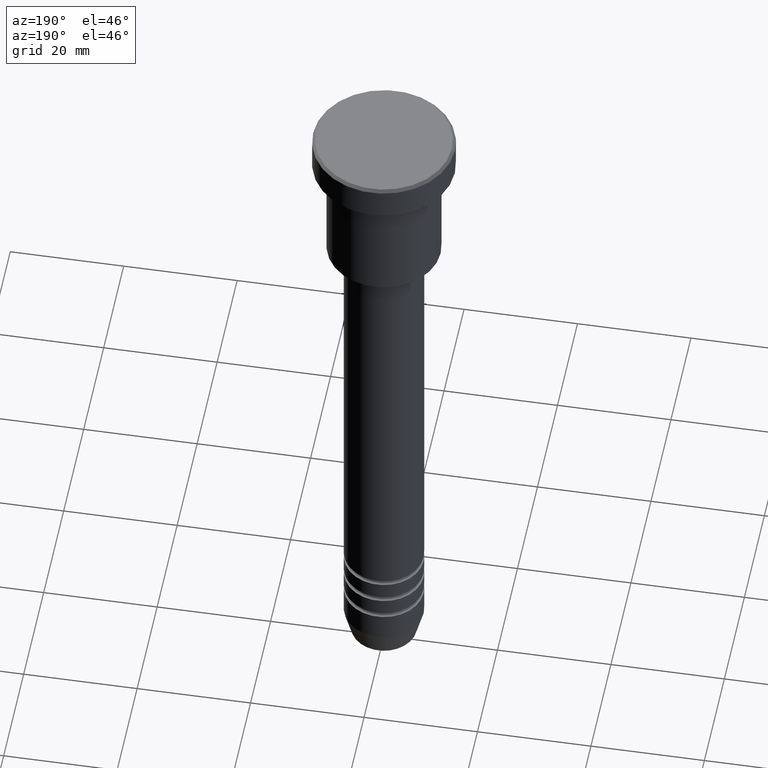
[diagram: clean part render]
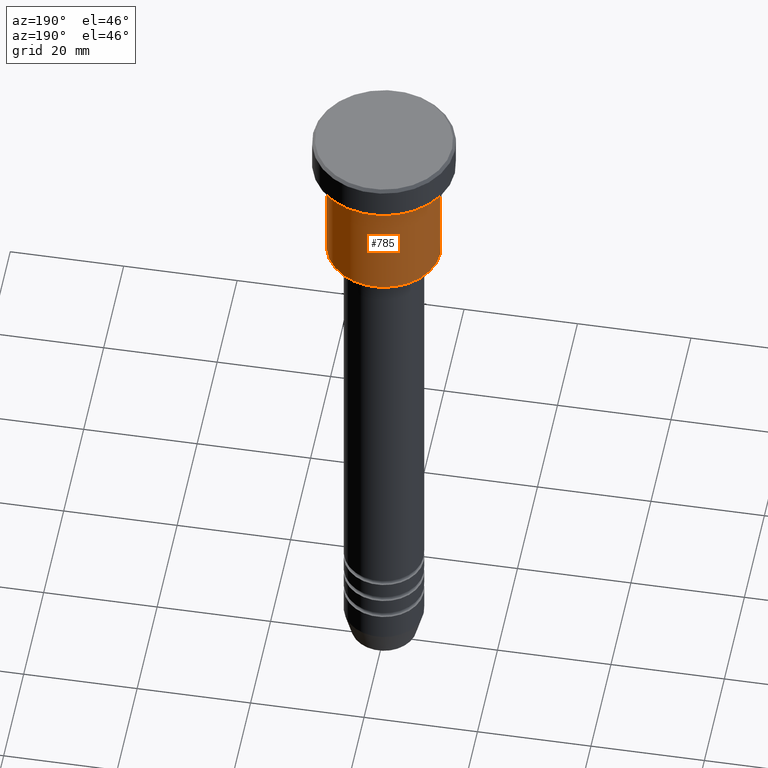
[diagram: same view with one face highlighted and labeled with its STEP entity id]
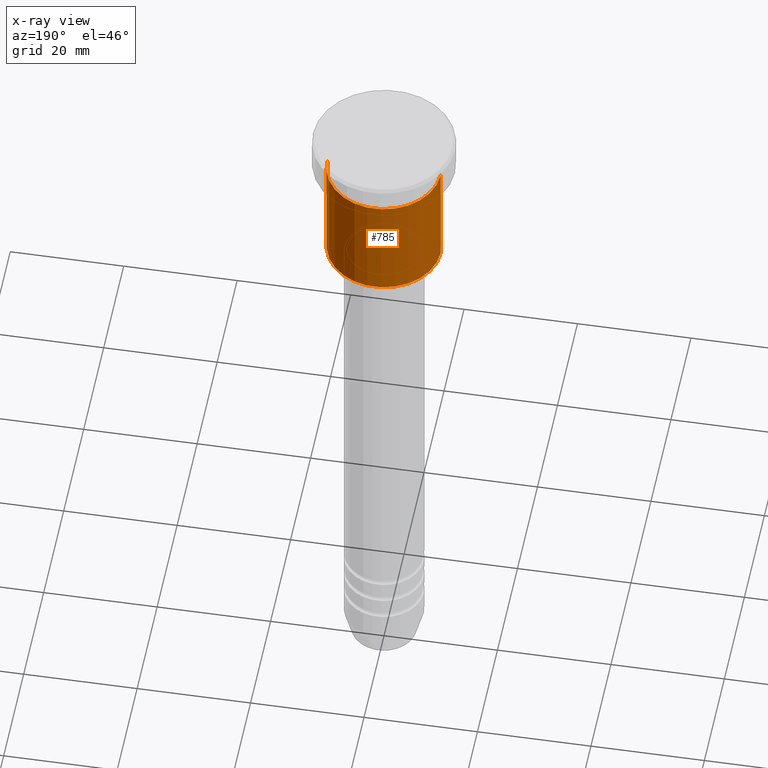
[diagram: x-ray of the same camera — body ghosted, the highlighted face saturated]
A machine part, auxiliary view. The second image highlights one B-rep face of the part: STEP entity #785.
The next image is the same camera in x-ray: the body ghosted, the highlighted face saturated — about 0% of this face is hidden behind the body in this view.
In plain terms, the highlighted cylindrical surface (partial cylindrical patch) has radius 10 mm, axis along (-0, -0, 1).
Its self-contained STEP definition (entity closure, byte-faithful):
#18 = CARTESIAN_POINT ( 'NONE',  ( 10.00000000000000000, 0.000000000000000000, -6.999999999999996447 ) ) ;
#23 = CARTESIAN_POINT ( 'NONE',  ( 0.000000000000000000, 0.000000000000000000, 0.000000000000000000 ) ) ;
#47 = VERTEX_POINT ( 'NONE', #18 ) ;
#57 = DIRECTION ( 'NONE',  ( -0.000000000000000000, -0.000000000000000000, 1.000000000000000000 ) ) ;
#60 = CARTESIAN_POINT ( 'NONE',  ( 0.000000000000000000, 0.000000000000000000, -6.999999999999996447 ) ) ;
#80 = VERTEX_POINT ( 'NONE', #1100 ) ;
#101 = ORIENTED_EDGE ( 'NONE', *, *, #193, .T. ) ;
#115 = CIRCLE ( 'NONE', #382, 10.00000000000000000 ) ;
#172 = CARTESIAN_POINT ( 'NONE',  ( -10.00000000000000000, 1.224646799147353256E-15, -6.999999999999996447 ) ) ;
#177 = LINE ( 'NONE', #452, #279 ) ;
#193 = EDGE_CURVE ( 'NONE', #80, #596, #115, .T. ) ;
#211 = DIRECTION ( 'NONE',  ( -0.000000000000000000, -0.000000000000000000, 1.000000000000000000 ) ) ;
#272 = CARTESIAN_POINT ( 'NONE',  ( -10.00000000000000000, 1.224646799147353256E-15, -26.49999999999997868 ) ) ;
#279 = VECTOR ( 'NONE', #365, 1000.000000000000000 ) ;
#365 = DIRECTION ( 'NONE',  ( -0.000000000000000000, -0.000000000000000000, 1.000000000000000000 ) ) ;
#382 = AXIS2_PLACEMENT_3D ( 'NONE', #493, #864, #957 ) ;
#452 = CARTESIAN_POINT ( 'NONE',  ( -10.00000000000000000, 1.224646799147353256E-15, 0.000000000000000000 ) ) ;
#467 = FACE_OUTER_BOUND ( 'NONE', #936, .T. ) ;
#477 = AXIS2_PLACEMENT_3D ( 'NONE', #23, #211, #749 ) ;
#493 = CARTESIAN_POINT ( 'NONE',  ( 0.000000000000000000, 0.000000000000000000, -26.49999999999997868 ) ) ;
#557 = EDGE_CURVE ( 'NONE', #80, #47, #765, .T. ) ;
#562 = VECTOR ( 'NONE', #57, 1000.000000000000000 ) ;
#596 = VERTEX_POINT ( 'NONE', #272 ) ;
#663 = AXIS2_PLACEMENT_3D ( 'NONE', #60, #721, #900 ) ;
#688 = VERTEX_POINT ( 'NONE', #172 ) ;
#721 = DIRECTION ( 'NONE',  ( -0.000000000000000000, -0.000000000000000000, 1.000000000000000000 ) ) ;
#749 = DIRECTION ( 'NONE',  ( 1.000000000000000000, 0.000000000000000000, 0.000000000000000000 ) ) ;
#763 = ORIENTED_EDGE ( 'NONE', *, *, #557, .F. ) ;
#765 = LINE ( 'NONE', #880, #562 ) ;
#785 = ADVANCED_FACE ( 'NONE', ( #467 ), #843, .T. ) ;
#843 = CYLINDRICAL_SURFACE ( 'NONE', #477, 10.00000000000000000 ) ;
#864 = DIRECTION ( 'NONE',  ( -0.000000000000000000, -0.000000000000000000, 1.000000000000000000 ) ) ;
#880 = CARTESIAN_POINT ( 'NONE',  ( 10.00000000000000000, 0.000000000000000000, 0.000000000000000000 ) ) ;
#888 = ORIENTED_EDGE ( 'NONE', *, *, #1050, .T. ) ;
#900 = DIRECTION ( 'NONE',  ( 1.000000000000000000, 0.000000000000000000, 0.000000000000000000 ) ) ;
#936 = EDGE_LOOP ( 'NONE', ( #101, #888, #1165, #763 ) ) ;
#957 = DIRECTION ( 'NONE',  ( -1.000000000000000000, 0.000000000000000000, 0.000000000000000000 ) ) ;
#971 = EDGE_CURVE ( 'NONE', #47, #688, #1158, .T. ) ;
#1050 = EDGE_CURVE ( 'NONE', #596, #688, #177, .T. ) ;
#1100 = CARTESIAN_POINT ( 'NONE',  ( 10.00000000000000000, 0.000000000000000000, -26.49999999999997868 ) ) ;
#1158 = CIRCLE ( 'NONE', #663, 10.00000000000000000 ) ;
#1165 = ORIENTED_EDGE ( 'NONE', *, *, #971, .F. ) ;